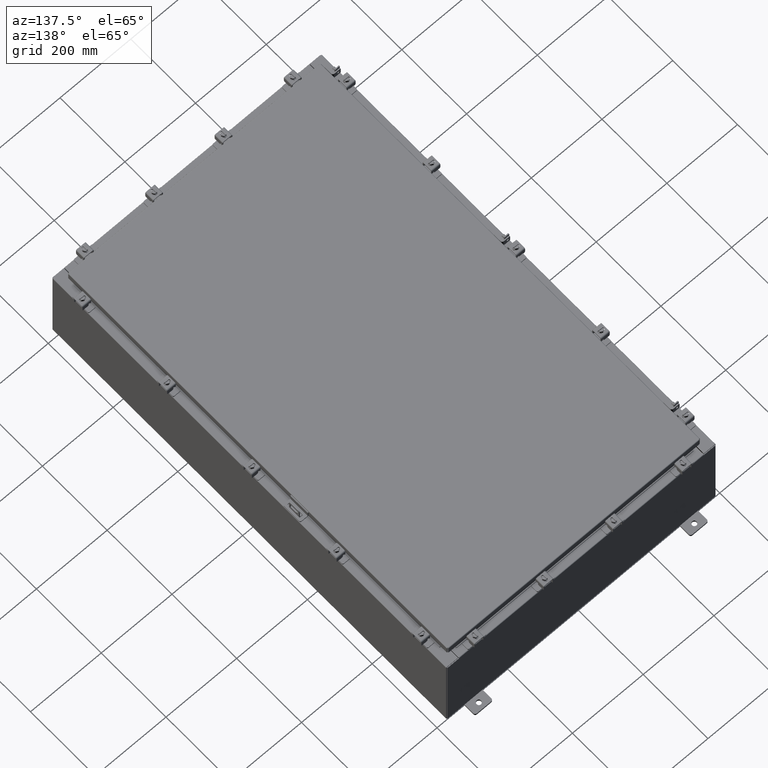
[diagram: clean part render]
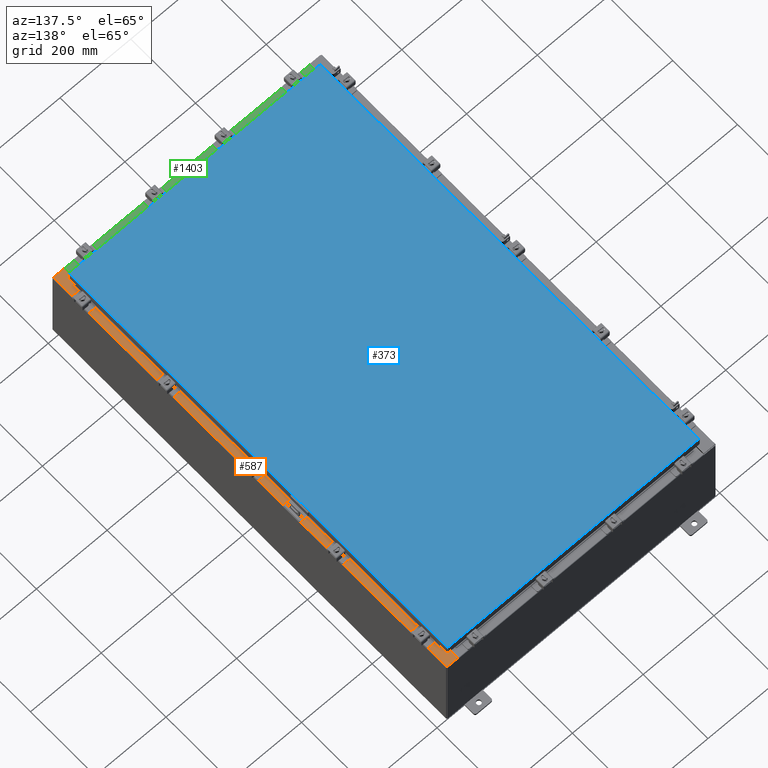
[diagram: same view with three faces highlighted in distinct colors, each labeled with its STEP entity id]
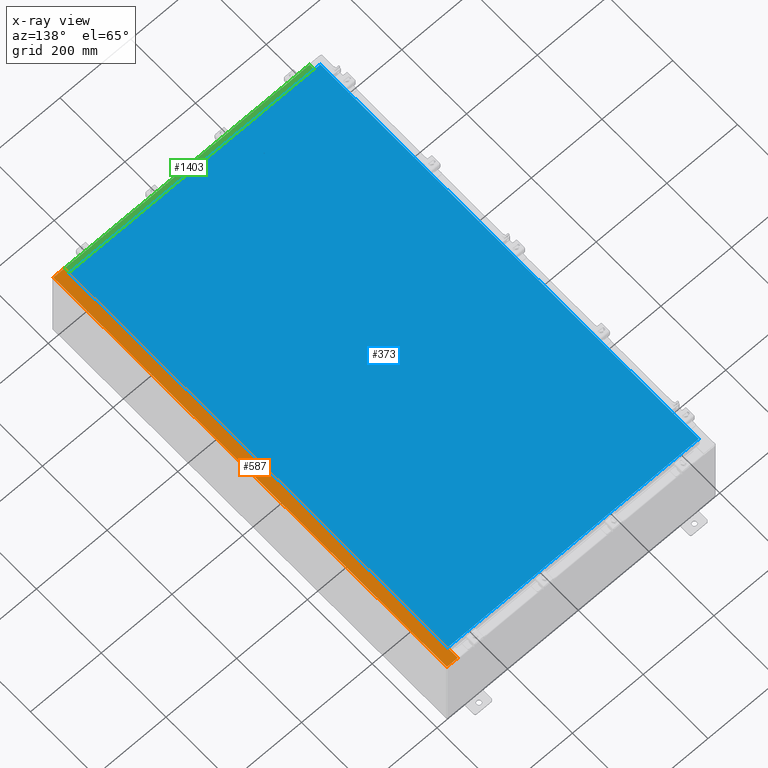
[diagram: x-ray of the same camera — body ghosted, the three highlighted faces saturated]
A machine part, auxiliary view with three faces highlighted in distinct colors.
The next image is the same camera in x-ray (body ghosted, the three faces saturated) — at least one of them is partly hidden behind the body in this view.
Their STEP definitions:

[orange] entity #587 — the highlighted planar face has unit normal (-0, 0, -1).
#69 = DIRECTION ( 'NONE',  ( -3.203758888773075000E-031, -1.000000000000000000, 1.713873817065035400E-045 ) ) ;
#289 = VERTEX_POINT ( 'NONE', #18389 ) ;
#388 = CARTESIAN_POINT ( 'NONE',  ( 13.71270000000003700, 22.59374999999997900, 9.925300000000008900 ) ) ;
#587 = ADVANCED_FACE ( 'NONE', ( #6048 ), #15939, .F. ) ;
#1182 = CARTESIAN_POINT ( 'NONE',  ( 13.69970000000003400, 23.92529999999998900, 9.925300000000008900 ) ) ;
#1590 = CARTESIAN_POINT ( 'NONE',  ( 14.91230000000003400, -23.92529999999998600, 9.925300000000001800 ) ) ;
#1599 = ORIENTED_EDGE ( 'NONE', *, *, #9518, .T. ) ;
#2368 = VERTEX_POINT ( 'NONE', #18455 ) ;
#2730 = CARTESIAN_POINT ( 'NONE',  ( 13.69970000000003400, -22.63109999999997900, 9.925300000000008900 ) ) ;
#2870 = DIRECTION ( 'NONE',  ( 5.349571789159788500E-015, 0.0000000000000000000, 1.000000000000000000 ) ) ;
#2871 = VERTEX_POINT ( 'NONE', #388 ) ;
#3199 = VERTEX_POINT ( 'NONE', #1590 ) ;
#3482 = CARTESIAN_POINT ( 'NONE',  ( 13.75005000000003500, -22.59374999999997900, 9.925300000000008900 ) ) ;
#3513 = CARTESIAN_POINT ( 'NONE',  ( 13.69970000000003400, -4.389053564852444200E-030, 9.925300000000008900 ) ) ;
#3516 = CARTESIAN_POINT ( 'NONE',  ( 13.75005000000003500, 22.59374999999997900, 9.925300000000008900 ) ) ;
#3763 = DIRECTION ( 'NONE',  ( 1.000000000000000000, 0.0000000000000000000, 0.0000000000000000000 ) ) ;
#3986 = VECTOR ( 'NONE', #6387, 39.37007874015748100 ) ;
#4680 = CARTESIAN_POINT ( 'NONE',  ( 13.75005000000003500, -22.59374999999997900, 9.925300000000008900 ) ) ;
#4839 = VECTOR ( 'NONE', #3763, 39.37007874015748100 ) ;
#5354 = VECTOR ( 'NONE', #21086, 39.37007874015748100 ) ;
#6048 = FACE_OUTER_BOUND ( 'NONE', #18190, .T. ) ;
#6171 = EDGE_CURVE ( 'NONE', #15903, #9600, #18457, .T. ) ;
#6238 = VECTOR ( 'NONE', #19916, 39.37007874015748100 ) ;
#6387 = DIRECTION ( 'NONE',  ( -1.000000000000000000, 0.0000000000000000000, 0.0000000000000000000 ) ) ;
#6452 = DIRECTION ( 'NONE',  ( -3.203758888773075000E-031, -1.000000000000000000, 1.713873817065035400E-045 ) ) ;
#6526 = VECTOR ( 'NONE', #69, 39.37007874015748100 ) ;
#6728 = EDGE_CURVE ( 'NONE', #15903, #16136, #16260, .T. ) ;
#7046 = EDGE_CURVE ( 'NONE', #16136, #3199, #10828, .T. ) ;
#7106 = VECTOR ( 'NONE', #6452, 39.37007874015748100 ) ;
#7155 = CARTESIAN_POINT ( 'NONE',  ( 13.69970000000003400, -22.63109999999997900, 9.925300000000008900 ) ) ;
#7546 = DIRECTION ( 'NONE',  ( 5.349571789159788500E-015, 0.0000000000000000000, 1.000000000000000000 ) ) ;
#7718 = ORIENTED_EDGE ( 'NONE', *, *, #10360, .F. ) ;
#7890 = EDGE_CURVE ( 'NONE', #11385, #3199, #18661, .T. ) ;
#7899 = ORIENTED_EDGE ( 'NONE', *, *, #12256, .F. ) ;
#8925 = EDGE_CURVE ( 'NONE', #11385, #16332, #18514, .T. ) ;
#9038 = DIRECTION ( 'NONE',  ( -0.0000000000000000000, 1.000000000000000000, -0.0000000000000000000 ) ) ;
#9254 = VECTOR ( 'NONE', #12307, 39.37007874015748100 ) ;
#9380 = VERTEX_POINT ( 'NONE', #12567 ) ;
#9453 = LINE ( 'NONE', #21101, #18109 ) ;
#9518 = EDGE_CURVE ( 'NONE', #16332, #289, #16867, .T. ) ;
#9600 = VERTEX_POINT ( 'NONE', #20611 ) ;
#9995 = LINE ( 'NONE', #15911, #4839 ) ;
#10360 = EDGE_CURVE ( 'NONE', #9380, #289, #15472, .T. ) ;
#10823 = CIRCLE ( 'NONE', #11059, 0.01867499999999949400 ) ;
#10828 = LINE ( 'NONE', #16465, #6238 ) ;
#10970 = ORIENTED_EDGE ( 'NONE', *, *, #8925, .T. ) ;
#11059 = AXIS2_PLACEMENT_3D ( 'NONE', #13280, #2870, #15024 ) ;
#11370 = EDGE_CURVE ( 'NONE', #17240, #9380, #10823, .T. ) ;
#11385 = VERTEX_POINT ( 'NONE', #15104 ) ;
#11657 = CARTESIAN_POINT ( 'NONE',  ( 13.69970000000003400, -4.389053564852444200E-030, 9.925300000000008900 ) ) ;
#11695 = EDGE_CURVE ( 'NONE', #2871, #17240, #9995, .T. ) ;
#12103 = EDGE_CURVE ( 'NONE', #2368, #2871, #9453, .T. ) ;
#12256 = EDGE_CURVE ( 'NONE', #21543, #2368, #22454, .T. ) ;
#12307 = DIRECTION ( 'NONE',  ( 1.000000000000000000, 0.0000000000000000000, 0.0000000000000000000 ) ) ;
#12347 = CARTESIAN_POINT ( 'NONE',  ( 14.91230000000003400, -23.92529999999998200, 9.925300000000001800 ) ) ;
#12534 = DIRECTION ( 'NONE',  ( -1.000000000000000000, 0.0000000000000000000, 5.349571789159788500E-015 ) ) ;
#12567 = CARTESIAN_POINT ( 'NONE',  ( 13.75005000000003500, 22.63109999999997900, 9.925300000000008900 ) ) ;
#12861 = ORIENTED_EDGE ( 'NONE', *, *, #13121, .F. ) ;
#13121 = EDGE_CURVE ( 'NONE', #9600, #21543, #16152, .T. ) ;
#13280 = CARTESIAN_POINT ( 'NONE',  ( 13.75005000000003500, 22.61242499999997700, 9.925300000000008900 ) ) ;
#13504 = DIRECTION ( 'NONE',  ( -5.349571789159788500E-015, 0.0000000000000000000, -1.000000000000000000 ) ) ;
#13760 = CARTESIAN_POINT ( 'NONE',  ( 5.335691853495967900E-014, 0.0000000000000000000, 9.925300000000083500 ) ) ;
#13916 = VECTOR ( 'NONE', #17074, 39.37007874015748100 ) ;
#14225 = ORIENTED_EDGE ( 'NONE', *, *, #11370, .F. ) ;
#14325 = ORIENTED_EDGE ( 'NONE', *, *, #12103, .F. ) ;
#14933 = VECTOR ( 'NONE', #17306, 39.37007874015748100 ) ;
#15024 = DIRECTION ( 'NONE',  ( 1.000000000000000000, 0.0000000000000000000, 0.0000000000000000000 ) ) ;
#15104 = CARTESIAN_POINT ( 'NONE',  ( 14.91230000000003400, 23.92529999999998600, 9.925300000000001800 ) ) ;
#15332 = CARTESIAN_POINT ( 'NONE',  ( 5.335691853495967900E-014, 23.92529999999998900, 9.925300000000083500 ) ) ;
#15472 = LINE ( 'NONE', #22467, #14933 ) ;
#15634 = ORIENTED_EDGE ( 'NONE', *, *, #11695, .F. ) ;
#15903 = VERTEX_POINT ( 'NONE', #2730 ) ;
#15911 = CARTESIAN_POINT ( 'NONE',  ( 13.71270000000003700, 22.59374999999997900, 9.925300000000008900 ) ) ;
#15939 = PLANE ( 'NONE',  #19367 ) ;
#16136 = VERTEX_POINT ( 'NONE', #17673 ) ;
#16152 = CIRCLE ( 'NONE', #19407, 0.01867499999999949400 ) ;
#16260 = LINE ( 'NONE', #3513, #6526 ) ;
#16332 = VERTEX_POINT ( 'NONE', #1182 ) ;
#16465 = CARTESIAN_POINT ( 'NONE',  ( -3.196982141649654200E-014, -23.92529999999993300, 9.925300000000083500 ) ) ;
#16838 = ORIENTED_EDGE ( 'NONE', *, *, #7046, .T. ) ;
#16867 = LINE ( 'NONE', #11657, #7106 ) ;
#17074 = DIRECTION ( 'NONE',  ( -1.000000000000000000, 0.0000000000000000000, 5.349571789159789300E-015 ) ) ;
#17218 = ORIENTED_EDGE ( 'NONE', *, *, #6171, .F. ) ;
#17240 = VERTEX_POINT ( 'NONE', #3516 ) ;
#17306 = DIRECTION ( 'NONE',  ( -1.000000000000000000, 0.0000000000000000000, 0.0000000000000000000 ) ) ;
#17673 = CARTESIAN_POINT ( 'NONE',  ( 13.69970000000003400, -23.92529999999998200, 9.925300000000008900 ) ) ;
#17906 = CARTESIAN_POINT ( 'NONE',  ( 13.75005000000003500, -22.61242499999997700, 9.925300000000008900 ) ) ;
#18109 = VECTOR ( 'NONE', #9038, 39.37007874015748100 ) ;
#18190 = EDGE_LOOP ( 'NONE', ( #17218, #18614, #16838, #22159, #10970, #1599, #7718, #14225, #15634, #14325, #7899, #12861 ) ) ;
#18389 = CARTESIAN_POINT ( 'NONE',  ( 13.69970000000003400, 22.63109999999997900, 9.925300000000008900 ) ) ;
#18455 = CARTESIAN_POINT ( 'NONE',  ( 13.71270000000003700, -22.59374999999997900, 9.925300000000008900 ) ) ;
#18457 = LINE ( 'NONE', #7155, #9254 ) ;
#18514 = LINE ( 'NONE', #15332, #13916 ) ;
#18614 = ORIENTED_EDGE ( 'NONE', *, *, #6728, .T. ) ;
#18661 = LINE ( 'NONE', #12347, #5354 ) ;
#19367 = AXIS2_PLACEMENT_3D ( 'NONE', #13760, #13504, #12534 ) ;
#19407 = AXIS2_PLACEMENT_3D ( 'NONE', #17906, #7546, #19679 ) ;
#19679 = DIRECTION ( 'NONE',  ( 1.000000000000000000, 0.0000000000000000000, 0.0000000000000000000 ) ) ;
#19916 = DIRECTION ( 'NONE',  ( 1.000000000000000000, -3.566381192773192400E-015, -5.349571789159789300E-015 ) ) ;
#20611 = CARTESIAN_POINT ( 'NONE',  ( 13.75005000000003500, -22.63109999999997900, 9.925300000000008900 ) ) ;
#21086 = DIRECTION ( 'NONE',  ( -0.0000000000000000000, -1.000000000000000000, -0.0000000000000000000 ) ) ;
#21101 = CARTESIAN_POINT ( 'NONE',  ( 13.71270000000003700, -22.59374999999997900, 9.925300000000008900 ) ) ;
#21543 = VERTEX_POINT ( 'NONE', #3482 ) ;
#22159 = ORIENTED_EDGE ( 'NONE', *, *, #7890, .F. ) ;
#22454 = LINE ( 'NONE', #4680, #3986 ) ;
#22467 = CARTESIAN_POINT ( 'NONE',  ( 13.75005000000003500, 22.63109999999997900, 9.925300000000008900 ) ) ;

[blue] entity #373 — the highlighted planar face has unit normal (0, 0, -1).
#373 = ADVANCED_FACE ( 'NONE', ( #6335 ), #19680, .F. ) ;
#1347 = LINE ( 'NONE', #8157, #10064 ) ;
#1499 = DIRECTION ( 'NONE',  ( 0.0000000000000000000, -1.000000000000000000, 0.0000000000000000000 ) ) ;
#2115 = VERTEX_POINT ( 'NONE', #15818 ) ;
#2714 = VERTEX_POINT ( 'NONE', #8701 ) ;
#2878 = ORIENTED_EDGE ( 'NONE', *, *, #8126, .T. ) ;
#5607 = ORIENTED_EDGE ( 'NONE', *, *, #8718, .T. ) ;
#5926 = EDGE_CURVE ( 'NONE', #9937, #12885, #1347, .T. ) ;
#6335 = FACE_OUTER_BOUND ( 'NONE', #19239, .T. ) ;
#8030 = CARTESIAN_POINT ( 'NONE',  ( 13.99030000000000000, -23.00629999999999600, -1.297627796990525000E-015 ) ) ;
#8126 = EDGE_CURVE ( 'NONE', #12885, #2714, #14863, .T. ) ;
#8157 = CARTESIAN_POINT ( 'NONE',  ( -13.99029999999999100, -23.00630000000000000, 1.997663845366992600E-015 ) ) ;
#8701 = CARTESIAN_POINT ( 'NONE',  ( 13.99029999999999800, 23.00630000000000000, 1.946441695485787500E-015 ) ) ;
#8718 = EDGE_CURVE ( 'NONE', #2714, #2115, #13646, .T. ) ;
#9937 = VERTEX_POINT ( 'NONE', #12624 ) ;
#10064 = VECTOR ( 'NONE', #20306, 39.37007874015748100 ) ;
#10331 = EDGE_CURVE ( 'NONE', #2115, #9937, #11963, .T. ) ;
#11418 = VECTOR ( 'NONE', #1499, 39.37007874015748100 ) ;
#11934 = CARTESIAN_POINT ( 'NONE',  ( -13.99029999999999800, 23.00629999999999600, -2.048885995248197400E-016 ) ) ;
#11963 = LINE ( 'NONE', #11934, #11418 ) ;
#12624 = CARTESIAN_POINT ( 'NONE',  ( -13.99029999999999200, -23.00630000000000000, 2.006200870347193400E-015 ) ) ;
#12885 = VERTEX_POINT ( 'NONE', #18759 ) ;
#13646 = LINE ( 'NONE', #16462, #22338 ) ;
#14863 = LINE ( 'NONE', #8030, #18383 ) ;
#15089 = ORIENTED_EDGE ( 'NONE', *, *, #5926, .T. ) ;
#15142 = AXIS2_PLACEMENT_3D ( 'NONE', #19222, #19446, #20287 ) ;
#15818 = CARTESIAN_POINT ( 'NONE',  ( -13.99029999999999800, 23.00629999999999600, -2.048885995248197400E-016 ) ) ;
#16462 = CARTESIAN_POINT ( 'NONE',  ( 13.99029999999999800, 23.00630000000000000, 1.946441695485787500E-015 ) ) ;
#18267 = ORIENTED_EDGE ( 'NONE', *, *, #10331, .T. ) ;
#18288 = DIRECTION ( 'NONE',  ( -1.000000000000000000, -0.0000000000000000000, -0.0000000000000000000 ) ) ;
#18383 = VECTOR ( 'NONE', #20160, 39.37007874015748100 ) ;
#18759 = CARTESIAN_POINT ( 'NONE',  ( 13.99030000000000000, -23.00629999999999600, -1.297627796990525000E-015 ) ) ;
#19222 = CARTESIAN_POINT ( 'NONE',  ( 0.0000000000000000000, 0.0000000000000000000, 0.0000000000000000000 ) ) ;
#19239 = EDGE_LOOP ( 'NONE', ( #15089, #2878, #5607, #18267 ) ) ;
#19446 = DIRECTION ( 'NONE',  ( 0.0000000000000000000, 0.0000000000000000000, -1.000000000000000000 ) ) ;
#19680 = PLANE ( 'NONE',  #15142 ) ;
#20160 = DIRECTION ( 'NONE',  ( 0.0000000000000000000, 1.000000000000000000, 0.0000000000000000000 ) ) ;
#20287 = DIRECTION ( 'NONE',  ( -1.000000000000000000, 0.0000000000000000000, -0.0000000000000000000 ) ) ;
#20306 = DIRECTION ( 'NONE',  ( 1.000000000000000000, -0.0000000000000000000, -0.0000000000000000000 ) ) ;
#22338 = VECTOR ( 'NONE', #18288, 39.37007874015748100 ) ;

[green] entity #1403 — the highlighted planar face has unit normal (-0, -0, 1).
#249 = EDGE_CURVE ( 'NONE', #8822, #7078, #13105, .T. ) ;
#1287 = CARTESIAN_POINT ( 'NONE',  ( 0.0000000000000000000, 1.782631094477737600E-014, 5.000000000000000000 ) ) ;
#1403 = ADVANCED_FACE ( 'NONE', ( #15744 ), #21888, .T. ) ;
#1697 = EDGE_LOOP ( 'NONE', ( #16639, #9737, #13298, #18583 ) ) ;
#3172 = CARTESIAN_POINT ( 'NONE',  ( 13.63719999999999800, -1.287299999999999900, 5.000000000000004400 ) ) ;
#4869 = LINE ( 'NONE', #14224, #18156 ) ;
#5900 = DIRECTION ( 'NONE',  ( 0.0000000000000000000, -1.000000000000000000, 3.566381192773190000E-015 ) ) ;
#6856 = EDGE_CURVE ( 'NONE', #16495, #7078, #4869, .T. ) ;
#7078 = VERTEX_POINT ( 'NONE', #11329 ) ;
#7257 = DIRECTION ( 'NONE',  ( -0.0000000000000000000, 1.000000000000000000, -3.566381192773190000E-015 ) ) ;
#8760 = EDGE_CURVE ( 'NONE', #8822, #14398, #17716, .T. ) ;
#8822 = VERTEX_POINT ( 'NONE', #22020 ) ;
#9050 = VECTOR ( 'NONE', #16312, 39.37007874015748100 ) ;
#9737 = ORIENTED_EDGE ( 'NONE', *, *, #12936, .F. ) ;
#11329 = CARTESIAN_POINT ( 'NONE',  ( -13.63720000000000400, -0.08770000000000081900, 5.000000000000000000 ) ) ;
#12029 = VECTOR ( 'NONE', #13285, 39.37007874015748100 ) ;
#12096 = DIRECTION ( 'NONE',  ( -1.000000000000000000, 0.0000000000000000000, 0.0000000000000000000 ) ) ;
#12936 = EDGE_CURVE ( 'NONE', #14398, #16495, #16985, .T. ) ;
#13105 = LINE ( 'NONE', #16286, #9050 ) ;
#13285 = DIRECTION ( 'NONE',  ( -0.0000000000000000000, -1.000000000000000000, 3.566381192773190000E-015 ) ) ;
#13298 = ORIENTED_EDGE ( 'NONE', *, *, #8760, .F. ) ;
#14224 = CARTESIAN_POINT ( 'NONE',  ( -13.63720000000000400, -0.07469999999999973900, 5.000000000000000000 ) ) ;
#14398 = VERTEX_POINT ( 'NONE', #3172 ) ;
#15057 = DIRECTION ( 'NONE',  ( 0.0000000000000000000, 3.566381192773190000E-015, 1.000000000000000000 ) ) ;
#15491 = CARTESIAN_POINT ( 'NONE',  ( 13.63719999999999800, -1.287299999999999900, 5.000000000000002700 ) ) ;
#15744 = FACE_OUTER_BOUND ( 'NONE', #1697, .T. ) ;
#16286 = CARTESIAN_POINT ( 'NONE',  ( 3.513669507588167300E-018, -0.08770000000000081900, 5.000000000000000000 ) ) ;
#16312 = DIRECTION ( 'NONE',  ( -1.000000000000000000, -4.006464660875052000E-017, 1.428858021605520200E-031 ) ) ;
#16495 = VERTEX_POINT ( 'NONE', #22518 ) ;
#16639 = ORIENTED_EDGE ( 'NONE', *, *, #6856, .F. ) ;
#16702 = CARTESIAN_POINT ( 'NONE',  ( 13.63719999999999800, -1.300299999999999800, 5.000000000000004400 ) ) ;
#16985 = LINE ( 'NONE', #15491, #20541 ) ;
#17716 = LINE ( 'NONE', #16702, #12029 ) ;
#18156 = VECTOR ( 'NONE', #7257, 39.37007874015748100 ) ;
#18583 = ORIENTED_EDGE ( 'NONE', *, *, #249, .T. ) ;
#19227 = AXIS2_PLACEMENT_3D ( 'NONE', #1287, #15057, #5900 ) ;
#20541 = VECTOR ( 'NONE', #12096, 39.37007874015748100 ) ;
#21888 = PLANE ( 'NONE',  #19227 ) ;
#22020 = CARTESIAN_POINT ( 'NONE',  ( 13.63719999999999800, -0.08770000000000047200, 5.000000000000000000 ) ) ;
#22518 = CARTESIAN_POINT ( 'NONE',  ( -13.63720000000000400, -1.287299999999999200, 5.000000000000004400 ) ) ;